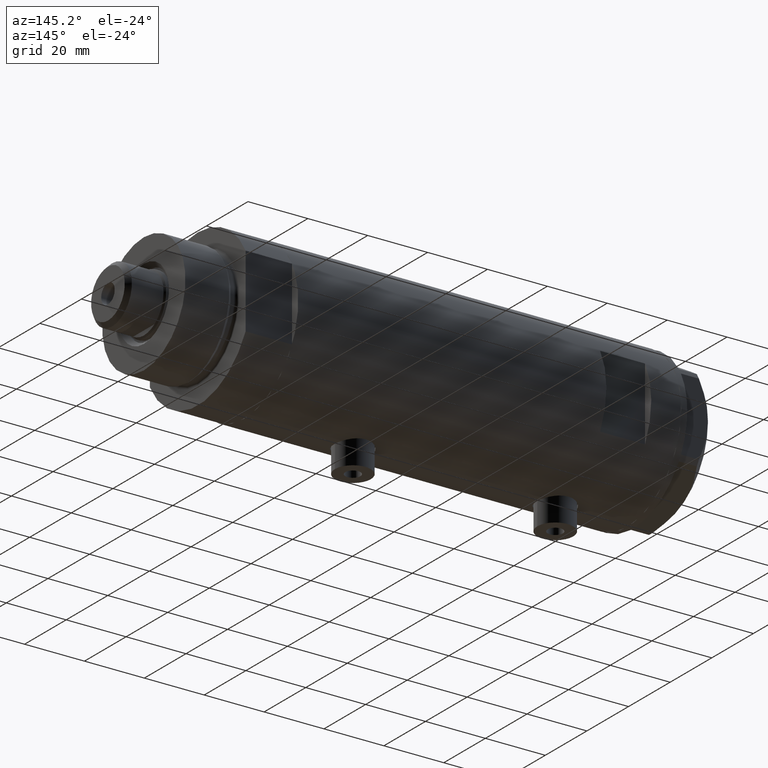
[diagram: clean part render]
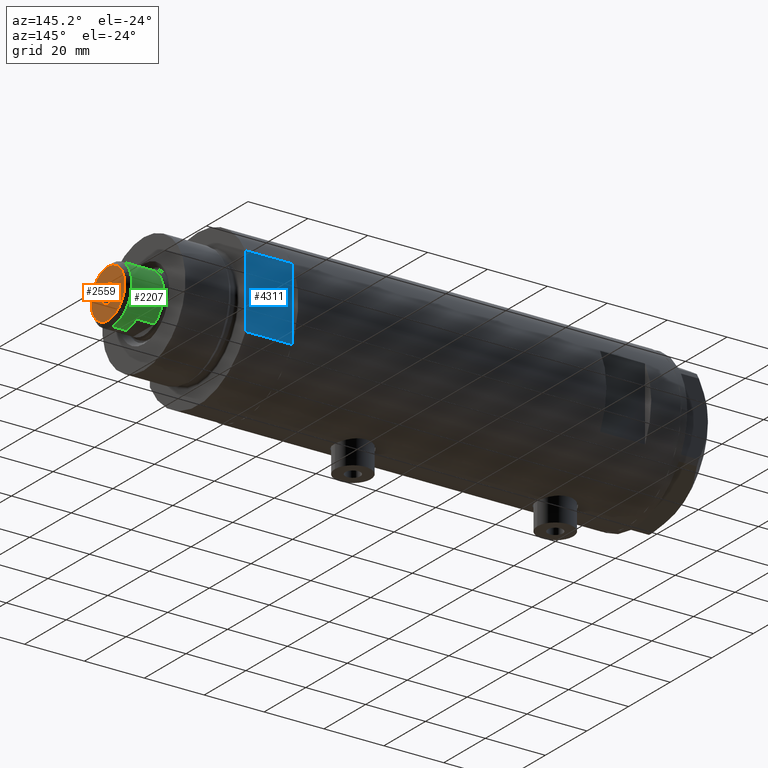
[diagram: same view with three faces highlighted in distinct colors, each labeled with its STEP entity id]
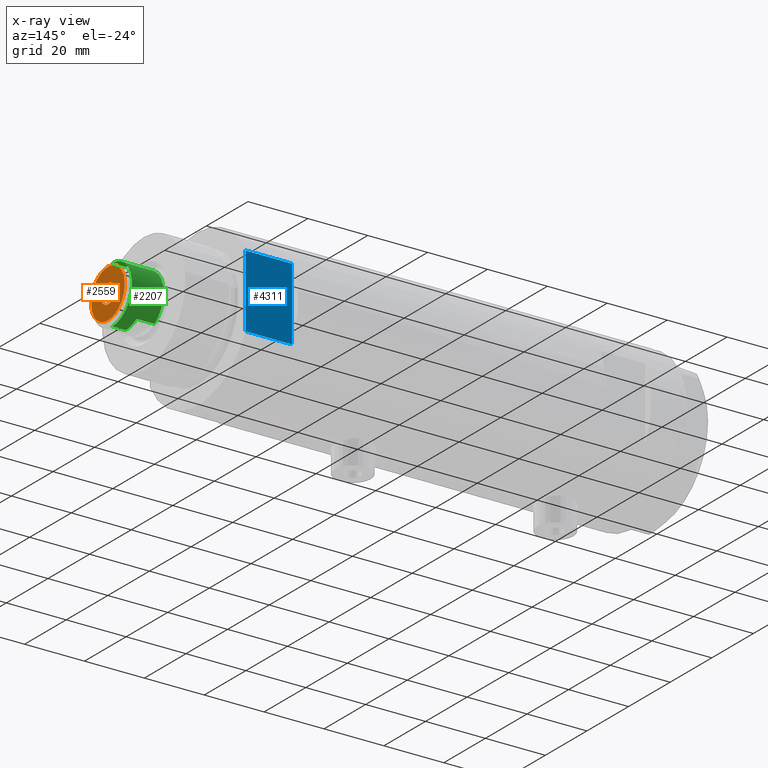
[diagram: x-ray of the same camera — body ghosted, the three highlighted faces saturated]
A machine part, auxiliary view with three faces highlighted in distinct colors.
The next image is the same camera in x-ray (body ghosted, the three faces saturated) — at least one of them is partly hidden behind the body in this view.
Their STEP definitions:

[orange] entity #2559 — the highlighted planar face has unit normal (1, 0, -0).
#16 = DIRECTION ( 'NONE',  ( -0.000000000000000000, -0.000000000000000000, 1.000000000000000000 ) ) ;
#34 = EDGE_LOOP ( 'NONE', ( #848, #4054 ) ) ;
#72 = ORIENTED_EDGE ( 'NONE', *, *, #2666, .T. ) ;
#151 = CARTESIAN_POINT ( 'NONE',  ( 0.000000000000000000, 0.000000000000000000, 149.6000000000000227 ) ) ;
#275 = VERTEX_POINT ( 'NONE', #794 ) ;
#673 = AXIS2_PLACEMENT_3D ( 'NONE', #2175, #3397, #4575 ) ;
#681 = CARTESIAN_POINT ( 'NONE',  ( -3.249999999999998224, 3.980102097228895766E-16, 149.6000000000000227 ) ) ;
#794 = CARTESIAN_POINT ( 'NONE',  ( 3.249999999999998224, 0.000000000000000000, 149.6000000000000227 ) ) ;
#848 = ORIENTED_EDGE ( 'NONE', *, *, #864, .F. ) ;
#860 = CARTESIAN_POINT ( 'NONE',  ( 0.000000000000000000, 0.000000000000000000, 149.6000000000000227 ) ) ;
#864 = EDGE_CURVE ( 'NONE', #275, #1345, #1524, .T. ) ;
#892 = FACE_OUTER_BOUND ( 'NONE', #5153, .T. ) ;
#942 = PLANE ( 'NONE',  #3946 ) ;
#974 = DIRECTION ( 'NONE',  ( 0.000000000000000000, 0.000000000000000000, 1.000000000000000000 ) ) ;
#1180 = VERTEX_POINT ( 'NONE', #4934 ) ;
#1345 = VERTEX_POINT ( 'NONE', #681 ) ;
#1524 = CIRCLE ( 'NONE', #673, 3.249999999999998224 ) ;
#1636 = DIRECTION ( 'NONE',  ( 1.000000000000000000, 0.000000000000000000, 0.000000000000000000 ) ) ;
#2125 = VERTEX_POINT ( 'NONE', #5027 ) ;
#2130 = DIRECTION ( 'NONE',  ( 0.000000000000000000, 0.000000000000000000, 1.000000000000000000 ) ) ;
#2175 = CARTESIAN_POINT ( 'NONE',  ( 0.000000000000000000, 0.000000000000000000, 149.6000000000000227 ) ) ;
#2309 = EDGE_CURVE ( 'NONE', #1345, #275, #2688, .T. ) ;
#2532 = AXIS2_PLACEMENT_3D ( 'NONE', #4104, #2130, #5115 ) ;
#2559 = ADVANCED_FACE ( 'NONE', ( #892, #4944 ), #942, .T. ) ;
#2610 = CIRCLE ( 'NONE', #2532, 8.099999999999981881 ) ;
#2666 = EDGE_CURVE ( 'NONE', #2125, #1180, #2610, .T. ) ;
#2688 = CIRCLE ( 'NONE', #4367, 3.249999999999998224 ) ;
#2720 = CARTESIAN_POINT ( 'NONE',  ( 0.000000000000000000, 0.000000000000000000, 149.6000000000000227 ) ) ;
#2843 = DIRECTION ( 'NONE',  ( 1.000000000000000000, 0.000000000000000000, -0.000000000000000000 ) ) ;
#3397 = DIRECTION ( 'NONE',  ( -0.000000000000000000, -0.000000000000000000, 1.000000000000000000 ) ) ;
#3662 = DIRECTION ( 'NONE',  ( 0.000000000000000000, 0.000000000000000000, 1.000000000000000000 ) ) ;
#3766 = EDGE_CURVE ( 'NONE', #1180, #2125, #4470, .T. ) ;
#3946 = AXIS2_PLACEMENT_3D ( 'NONE', #860, #974, #2843 ) ;
#4054 = ORIENTED_EDGE ( 'NONE', *, *, #2309, .F. ) ;
#4104 = CARTESIAN_POINT ( 'NONE',  ( 0.000000000000000000, 0.000000000000000000, 149.6000000000000227 ) ) ;
#4367 = AXIS2_PLACEMENT_3D ( 'NONE', #2720, #16, #1636 ) ;
#4470 = CIRCLE ( 'NONE', #4556, 8.099999999999981881 ) ;
#4556 = AXIS2_PLACEMENT_3D ( 'NONE', #151, #3662, #4977 ) ;
#4575 = DIRECTION ( 'NONE',  ( 1.000000000000000000, 0.000000000000000000, 0.000000000000000000 ) ) ;
#4829 = ORIENTED_EDGE ( 'NONE', *, *, #3766, .T. ) ;
#4934 = CARTESIAN_POINT ( 'NONE',  ( -8.099999999999981881, 0.000000000000000000, 149.6000000000000227 ) ) ;
#4944 = FACE_BOUND ( 'NONE', #34, .T. ) ;
#4977 = DIRECTION ( 'NONE',  ( 1.000000000000000000, 0.000000000000000000, 0.000000000000000000 ) ) ;
#5027 = CARTESIAN_POINT ( 'NONE',  ( 8.099999999999981881, 1.077689183249669619E-15, 149.6000000000000227 ) ) ;
#5115 = DIRECTION ( 'NONE',  ( 1.000000000000000000, 0.000000000000000000, 0.000000000000000000 ) ) ;
#5153 = EDGE_LOOP ( 'NONE', ( #4829, #72 ) ) ;

[blue] entity #4311 — the highlighted planar face has unit normal (0, -1, -0).
#223 = ORIENTED_EDGE ( 'NONE', *, *, #3326, .F. ) ;
#247 = EDGE_CURVE ( 'NONE', #2649, #2111, #3930, .T. ) ;
#462 = PLANE ( 'NONE',  #704 ) ;
#550 = EDGE_CURVE ( 'NONE', #2649, #5071, #3482, .T. ) ;
#704 = AXIS2_PLACEMENT_3D ( 'NONE', #1678, #3261, #4859 ) ;
#1006 = CARTESIAN_POINT ( 'NONE',  ( 12.12435565298214080, 23.00000000000000355, 0.000000000000000000 ) ) ;
#1209 = VECTOR ( 'NONE', #2076, 1000.000000000000000 ) ;
#1407 = LINE ( 'NONE', #4292, #3445 ) ;
#1461 = EDGE_LOOP ( 'NONE', ( #2523, #223, #1933, #3546 ) ) ;
#1642 = DIRECTION ( 'NONE',  ( 1.000000000000000000, 0.000000000000000000, 0.000000000000000000 ) ) ;
#1678 = CARTESIAN_POINT ( 'NONE',  ( -12.12435565298215145, 23.00000000000000355, 0.000000000000000000 ) ) ;
#1764 = CARTESIAN_POINT ( 'NONE',  ( -12.12435565298215145, 23.00000000000000355, 0.000000000000000000 ) ) ;
#1933 = ORIENTED_EDGE ( 'NONE', *, *, #247, .F. ) ;
#2075 = EDGE_CURVE ( 'NONE', #5071, #4001, #1407, .T. ) ;
#2076 = DIRECTION ( 'NONE',  ( -0.000000000000000000, -0.000000000000000000, 1.000000000000000000 ) ) ;
#2111 = VERTEX_POINT ( 'NONE', #1006 ) ;
#2387 = LINE ( 'NONE', #2739, #1209 ) ;
#2523 = ORIENTED_EDGE ( 'NONE', *, *, #2075, .T. ) ;
#2612 = CARTESIAN_POINT ( 'NONE',  ( -12.12435565298215145, 23.00000000000000355, 0.000000000000000000 ) ) ;
#2649 = VERTEX_POINT ( 'NONE', #1764 ) ;
#2681 = CARTESIAN_POINT ( 'NONE',  ( 12.12435565298214790, 23.00000000000000355, 15.50000000000000000 ) ) ;
#2739 = CARTESIAN_POINT ( 'NONE',  ( 12.12435565298215323, 23.00000000000000355, 0.000000000000000000 ) ) ;
#2803 = CARTESIAN_POINT ( 'NONE',  ( -12.12435565298215145, 23.00000000000000355, 0.000000000000000000 ) ) ;
#2900 = FACE_OUTER_BOUND ( 'NONE', #1461, .T. ) ;
#3261 = DIRECTION ( 'NONE',  ( 0.000000000000000000, -1.000000000000000000, 0.000000000000000000 ) ) ;
#3326 = EDGE_CURVE ( 'NONE', #2111, #4001, #2387, .T. ) ;
#3386 = DIRECTION ( 'NONE',  ( -0.000000000000000000, -0.000000000000000000, 1.000000000000000000 ) ) ;
#3445 = VECTOR ( 'NONE', #4660, 1000.000000000000000 ) ;
#3482 = LINE ( 'NONE', #2612, #4352 ) ;
#3546 = ORIENTED_EDGE ( 'NONE', *, *, #550, .T. ) ;
#3603 = CARTESIAN_POINT ( 'NONE',  ( -12.12435565298214613, 23.00000000000000355, 15.50000000000000000 ) ) ;
#3930 = LINE ( 'NONE', #2803, #4344 ) ;
#4001 = VERTEX_POINT ( 'NONE', #2681 ) ;
#4292 = CARTESIAN_POINT ( 'NONE',  ( -12.12435565298215145, 23.00000000000000355, 15.50000000000000000 ) ) ;
#4311 = ADVANCED_FACE ( 'NONE', ( #2900 ), #462, .F. ) ;
#4344 = VECTOR ( 'NONE', #1642, 1000.000000000000000 ) ;
#4352 = VECTOR ( 'NONE', #3386, 1000.000000000000000 ) ;
#4660 = DIRECTION ( 'NONE',  ( 1.000000000000000000, 0.000000000000000000, 0.000000000000000000 ) ) ;
#4859 = DIRECTION ( 'NONE',  ( 0.000000000000000000, -0.000000000000000000, -1.000000000000000000 ) ) ;
#5071 = VERTEX_POINT ( 'NONE', #3603 ) ;

[green] entity #2207 — the highlighted cylindrical surface (edge-blend (fillet) strip) has radius 9.5 mm, axis along (-1, -0, 0).
#18 = CARTESIAN_POINT ( 'NONE',  ( 0.000000000000000000, 0.000000000000000000, 143.5999999999999943 ) ) ;
#35 = AXIS2_PLACEMENT_3D ( 'NONE', #18, #4763, #3587 ) ;
#208 = CARTESIAN_POINT ( 'NONE',  ( -7.982950582334830791, 5.149999999999999467, 143.5999999999999943 ) ) ;
#297 = LINE ( 'NONE', #2757, #2711 ) ;
#416 = AXIS2_PLACEMENT_3D ( 'NONE', #3034, #2662, #1799 ) ;
#455 = AXIS2_PLACEMENT_3D ( 'NONE', #3906, #4662, #1079 ) ;
#501 = EDGE_CURVE ( 'NONE', #2811, #2998, #2019, .T. ) ;
#570 = EDGE_LOOP ( 'NONE', ( #2868, #2414, #3098, #2410, #2339, #4495, #1318, #1156 ) ) ;
#589 = VERTEX_POINT ( 'NONE', #208 ) ;
#710 = DIRECTION ( 'NONE',  ( -1.000000000000000000, 0.000000000000000000, 0.000000000000000000 ) ) ;
#711 = DIRECTION ( 'NONE',  ( 1.000000000000000000, 0.000000000000000000, 0.000000000000000000 ) ) ;
#764 = EDGE_CURVE ( 'NONE', #589, #5173, #2403, .T. ) ;
#769 = VERTEX_POINT ( 'NONE', #829 ) ;
#814 = CYLINDRICAL_SURFACE ( 'NONE', #1868, 9.500000000000001776 ) ;
#829 = CARTESIAN_POINT ( 'NONE',  ( 7.982950582334830791, 5.149999999999999467, 137.5999999999999943 ) ) ;
#1055 = CARTESIAN_POINT ( 'NONE',  ( 0.000000000000000000, 0.000000000000000000, 137.5999999999999943 ) ) ;
#1079 = DIRECTION ( 'NONE',  ( 1.000000000000000000, 0.000000000000000000, 0.000000000000000000 ) ) ;
#1116 = VERTEX_POINT ( 'NONE', #4589 ) ;
#1151 = DIRECTION ( 'NONE',  ( -0.000000000000000000, -0.000000000000000000, -1.000000000000000000 ) ) ;
#1156 = ORIENTED_EDGE ( 'NONE', *, *, #5060, .F. ) ;
#1216 = DIRECTION ( 'NONE',  ( -0.000000000000000000, -0.000000000000000000, -1.000000000000000000 ) ) ;
#1255 = EDGE_CURVE ( 'NONE', #3057, #769, #1726, .T. ) ;
#1318 = ORIENTED_EDGE ( 'NONE', *, *, #4797, .T. ) ;
#1330 = CARTESIAN_POINT ( 'NONE',  ( 7.982950582334830791, 5.149999999999999467, 143.5999999999999943 ) ) ;
#1417 = EDGE_CURVE ( 'NONE', #769, #5173, #3525, .T. ) ;
#1484 = DIRECTION ( 'NONE',  ( 0.000000000000000000, 0.000000000000000000, 1.000000000000000000 ) ) ;
#1583 = CARTESIAN_POINT ( 'NONE',  ( 0.000000000000000000, 0.000000000000000000, 143.5999999999999943 ) ) ;
#1607 = DIRECTION ( 'NONE',  ( -0.000000000000000000, -0.000000000000000000, -1.000000000000000000 ) ) ;
#1726 = LINE ( 'NONE', #1330, #2945 ) ;
#1799 = DIRECTION ( 'NONE',  ( 1.000000000000000000, 0.000000000000000000, 0.000000000000000000 ) ) ;
#1868 = AXIS2_PLACEMENT_3D ( 'NONE', #1583, #1216, #710 ) ;
#2019 = CIRCLE ( 'NONE', #416, 9.500000000000001776 ) ;
#2194 = VERTEX_POINT ( 'NONE', #2767 ) ;
#2207 = ADVANCED_FACE ( 'NONE', ( #2312 ), #814, .T. ) ;
#2312 = FACE_OUTER_BOUND ( 'NONE', #570, .T. ) ;
#2339 = ORIENTED_EDGE ( 'NONE', *, *, #1417, .T. ) ;
#2403 = LINE ( 'NONE', #3991, #3938 ) ;
#2410 = ORIENTED_EDGE ( 'NONE', *, *, #1255, .T. ) ;
#2414 = ORIENTED_EDGE ( 'NONE', *, *, #3317, .T. ) ;
#2662 = DIRECTION ( 'NONE',  ( 0.000000000000000000, 0.000000000000000000, -1.000000000000000000 ) ) ;
#2711 = VECTOR ( 'NONE', #1151, 1000.000000000000000 ) ;
#2757 = CARTESIAN_POINT ( 'NONE',  ( -9.500000000000001776, 0.000000000000000000, 143.5999999999999943 ) ) ;
#2767 = CARTESIAN_POINT ( 'NONE',  ( 9.500000000000000000, 1.163414459189985485E-15, 143.5999999999999943 ) ) ;
#2811 = VERTEX_POINT ( 'NONE', #5092 ) ;
#2817 = CARTESIAN_POINT ( 'NONE',  ( -7.982950582334829015, 5.150000000000015454, 137.5999999999999943 ) ) ;
#2868 = ORIENTED_EDGE ( 'NONE', *, *, #501, .T. ) ;
#2918 = DIRECTION ( 'NONE',  ( -0.000000000000000000, -0.000000000000000000, -1.000000000000000000 ) ) ;
#2945 = VECTOR ( 'NONE', #2918, 1000.000000000000000 ) ;
#2998 = VERTEX_POINT ( 'NONE', #4431 ) ;
#3034 = CARTESIAN_POINT ( 'NONE',  ( 0.000000000000000000, 0.000000000000000000, 148.1999999999999886 ) ) ;
#3057 = VERTEX_POINT ( 'NONE', #4587 ) ;
#3098 = ORIENTED_EDGE ( 'NONE', *, *, #4671, .T. ) ;
#3219 = LINE ( 'NONE', #3558, #4883 ) ;
#3317 = EDGE_CURVE ( 'NONE', #2998, #2194, #3219, .T. ) ;
#3525 = CIRCLE ( 'NONE', #4613, 9.500000000000008882 ) ;
#3558 = CARTESIAN_POINT ( 'NONE',  ( 9.500000000000001776, 1.163414459189985682E-15, 143.5999999999999943 ) ) ;
#3587 = DIRECTION ( 'NONE',  ( 1.000000000000000000, 0.000000000000000000, 0.000000000000000000 ) ) ;
#3599 = DIRECTION ( 'NONE',  ( -0.000000000000000000, -0.000000000000000000, -1.000000000000000000 ) ) ;
#3906 = CARTESIAN_POINT ( 'NONE',  ( 0.000000000000000000, 0.000000000000000000, 143.5999999999999943 ) ) ;
#3938 = VECTOR ( 'NONE', #3599, 1000.000000000000000 ) ;
#3991 = CARTESIAN_POINT ( 'NONE',  ( -7.982950582334830791, 5.149999999999999467, 143.5999999999999943 ) ) ;
#4431 = CARTESIAN_POINT ( 'NONE',  ( 9.500000000000001776, 1.163414459189985682E-15, 148.1999999999999886 ) ) ;
#4475 = CIRCLE ( 'NONE', #455, 9.500000000000000000 ) ;
#4495 = ORIENTED_EDGE ( 'NONE', *, *, #764, .F. ) ;
#4587 = CARTESIAN_POINT ( 'NONE',  ( 7.982950582334830791, 5.149999999999999467, 143.5999999999999943 ) ) ;
#4589 = CARTESIAN_POINT ( 'NONE',  ( -9.500000000000000000, 0.000000000000000000, 143.5999999999999943 ) ) ;
#4613 = AXIS2_PLACEMENT_3D ( 'NONE', #1055, #1484, #711 ) ;
#4662 = DIRECTION ( 'NONE',  ( 0.000000000000000000, 0.000000000000000000, 1.000000000000000000 ) ) ;
#4671 = EDGE_CURVE ( 'NONE', #2194, #3057, #4475, .T. ) ;
#4721 = CIRCLE ( 'NONE', #35, 9.500000000000000000 ) ;
#4763 = DIRECTION ( 'NONE',  ( 0.000000000000000000, 0.000000000000000000, 1.000000000000000000 ) ) ;
#4797 = EDGE_CURVE ( 'NONE', #589, #1116, #4721, .T. ) ;
#4883 = VECTOR ( 'NONE', #1607, 1000.000000000000000 ) ;
#5060 = EDGE_CURVE ( 'NONE', #2811, #1116, #297, .T. ) ;
#5092 = CARTESIAN_POINT ( 'NONE',  ( -9.500000000000001776, 0.000000000000000000, 148.1999999999999886 ) ) ;
#5173 = VERTEX_POINT ( 'NONE', #2817 ) ;